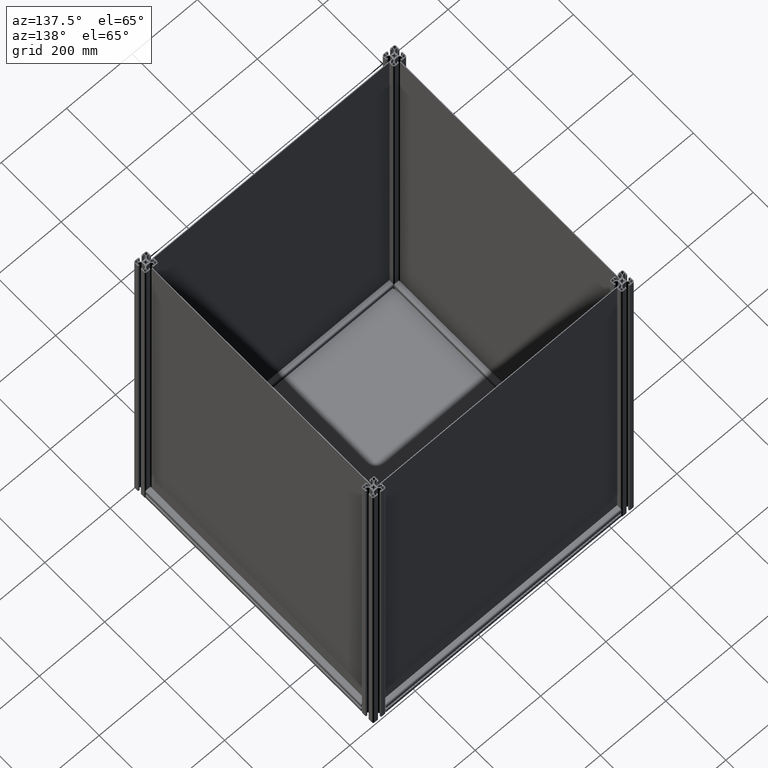
[diagram: clean part render]
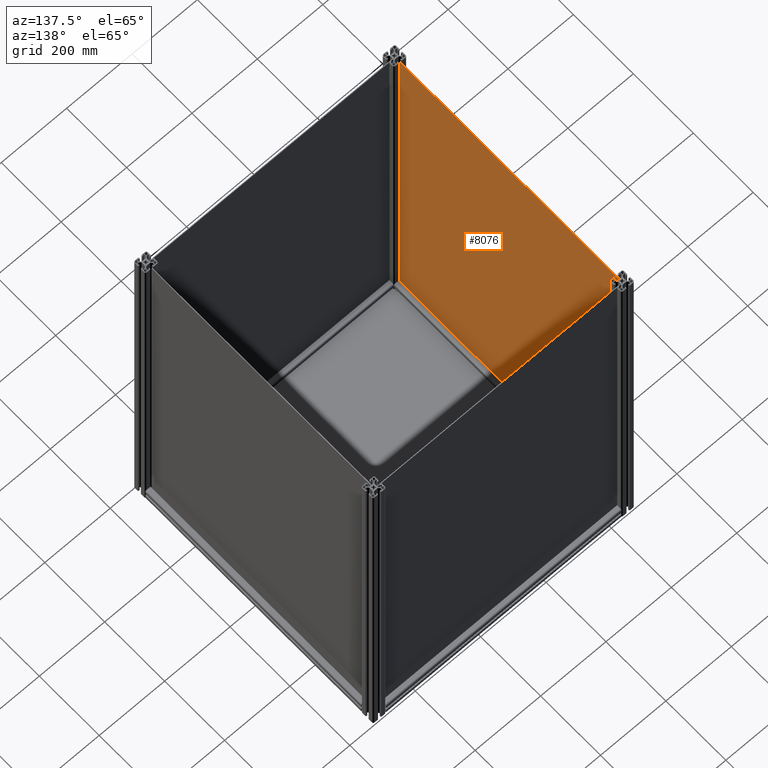
[diagram: same view with one face highlighted and labeled with its STEP entity id]
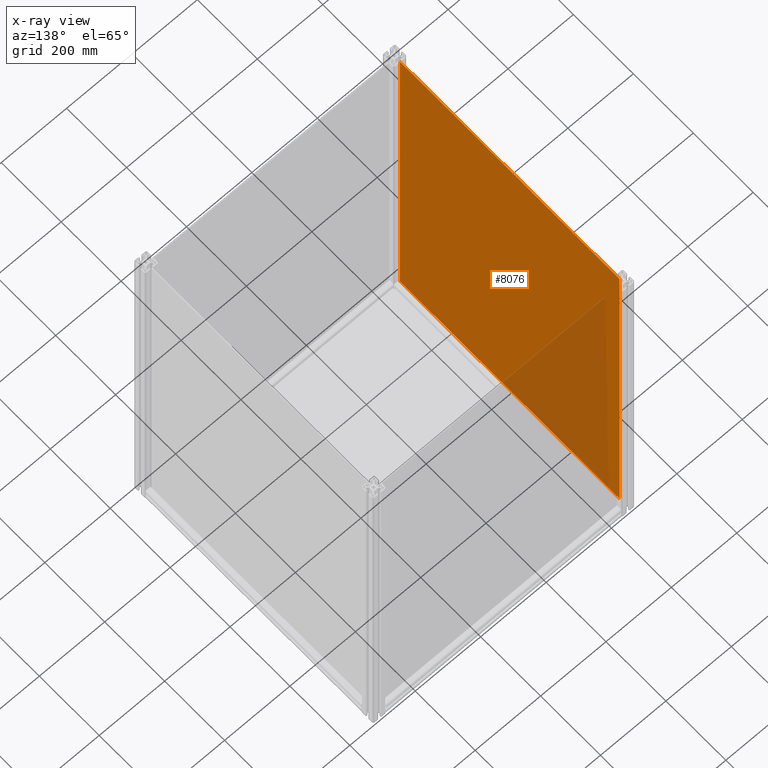
[diagram: x-ray of the same camera — body ghosted, the highlighted face saturated]
A machine part, auxiliary view. The second image highlights one B-rep face of the part: STEP entity #8076.
The next image is the same camera in x-ray: the body ghosted, the highlighted face saturated — about 21% of this face is hidden behind the body in this view.
In plain terms, the highlighted planar face has unit normal (1, 0, 0).
Its self-contained STEP definition (entity closure, byte-faithful):
#271 = DIRECTION ( 'NONE',  ( -1.420449110318777311E-16, 1.000000000000000000, -0.000000000000000000 ) ) ;
#549 = VERTEX_POINT ( 'NONE', #7452 ) ;
#635 = EDGE_CURVE ( 'NONE', #3015, #1391, #6547, .T. ) ;
#698 = DIRECTION ( 'NONE',  ( -1.000000000000000000, 0.000000000000000000, 0.000000000000000000 ) ) ;
#891 = DIRECTION ( 'NONE',  ( 0.000000000000000000, 0.000000000000000000, 1.000000000000000000 ) ) ;
#1391 = VERTEX_POINT ( 'NONE', #1394 ) ;
#1394 = CARTESIAN_POINT ( 'NONE',  ( -600.7269624573376632, -914.5269624573375040, 0.000000000000000000 ) ) ;
#1456 = CARTESIAN_POINT ( 'NONE',  ( 131.6730375426620299, 257.8730375426625301, 0.000000000000000000 ) ) ;
#1795 = EDGE_CURVE ( 'NONE', #9516, #3015, #10197, .T. ) ;
#1970 = CARTESIAN_POINT ( 'NONE',  ( -600.7269624573378906, 257.8730375426625301, 0.000000000000000000 ) ) ;
#2233 = CARTESIAN_POINT ( 'NONE',  ( 0.000000000000000000, 0.000000000000000000, 0.000000000000000000 ) ) ;
#2479 = VECTOR ( 'NONE', #698, 1000.000000000000000 ) ;
#2832 = VECTOR ( 'NONE', #271, 1000.000000000000000 ) ;
#3015 = VERTEX_POINT ( 'NONE', #1970 ) ;
#3853 = DIRECTION ( 'NONE',  ( 1.000000000000000000, 0.000000000000000000, 0.000000000000000000 ) ) ;
#4068 = ORIENTED_EDGE ( 'NONE', *, *, #5839, .T. ) ;
#4228 = AXIS2_PLACEMENT_3D ( 'NONE', #2233, #891, #10353 ) ;
#4927 = ORIENTED_EDGE ( 'NONE', *, *, #635, .T. ) ;
#5795 = CARTESIAN_POINT ( 'NONE',  ( 131.6730375426620299, 257.8730375426625301, 0.000000000000000000 ) ) ;
#5839 = EDGE_CURVE ( 'NONE', #1391, #549, #8108, .T. ) ;
#5985 = LINE ( 'NONE', #5795, #2832 ) ;
#6504 = FACE_OUTER_BOUND ( 'NONE', #10199, .T. ) ;
#6547 = LINE ( 'NONE', #9318, #10316 ) ;
#7343 = ORIENTED_EDGE ( 'NONE', *, *, #1795, .T. ) ;
#7452 = CARTESIAN_POINT ( 'NONE',  ( 131.6730375426621720, -914.5269624573375040, 0.000000000000000000 ) ) ;
#8076 = ADVANCED_FACE ( 'NONE', ( #6504 ), #11366, .T. ) ;
#8108 = LINE ( 'NONE', #8212, #8307 ) ;
#8212 = CARTESIAN_POINT ( 'NONE',  ( -600.7269624573376632, -914.5269624573375040, 0.000000000000000000 ) ) ;
#8261 = DIRECTION ( 'NONE',  ( 0.000000000000000000, -1.000000000000000000, 0.000000000000000000 ) ) ;
#8307 = VECTOR ( 'NONE', #3853, 1000.000000000000000 ) ;
#8782 = EDGE_CURVE ( 'NONE', #549, #9516, #5985, .T. ) ;
#8805 = ORIENTED_EDGE ( 'NONE', *, *, #8782, .T. ) ;
#8831 = CARTESIAN_POINT ( 'NONE',  ( -600.7269624573378906, 257.8730375426625301, 0.000000000000000000 ) ) ;
#9318 = CARTESIAN_POINT ( 'NONE',  ( -600.7269624573378906, 257.8730375426625301, 0.000000000000000000 ) ) ;
#9516 = VERTEX_POINT ( 'NONE', #1456 ) ;
#10197 = LINE ( 'NONE', #8831, #2479 ) ;
#10199 = EDGE_LOOP ( 'NONE', ( #8805, #7343, #4927, #4068 ) ) ;
#10316 = VECTOR ( 'NONE', #8261, 1000.000000000000000 ) ;
#10353 = DIRECTION ( 'NONE',  ( 1.000000000000000000, 0.000000000000000000, 0.000000000000000000 ) ) ;
#11366 = PLANE ( 'NONE',  #4228 ) ;